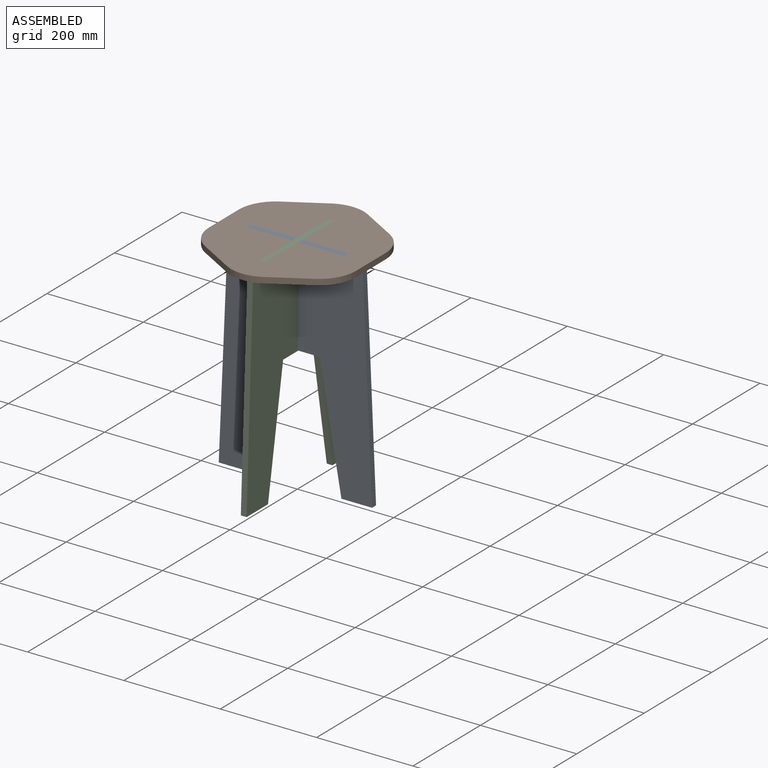
[diagram: assembled view]
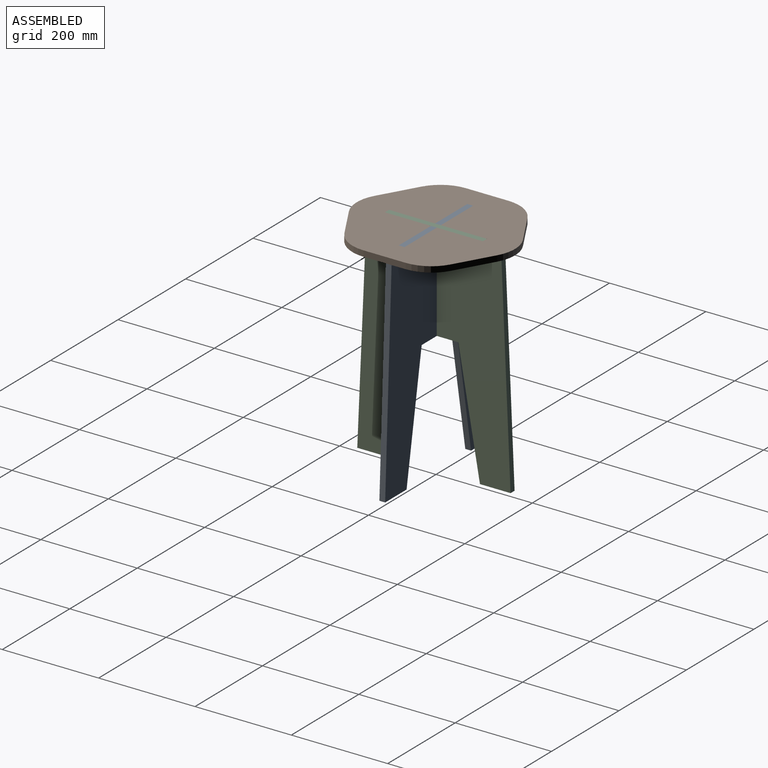
[diagram: assembled view, second angle]
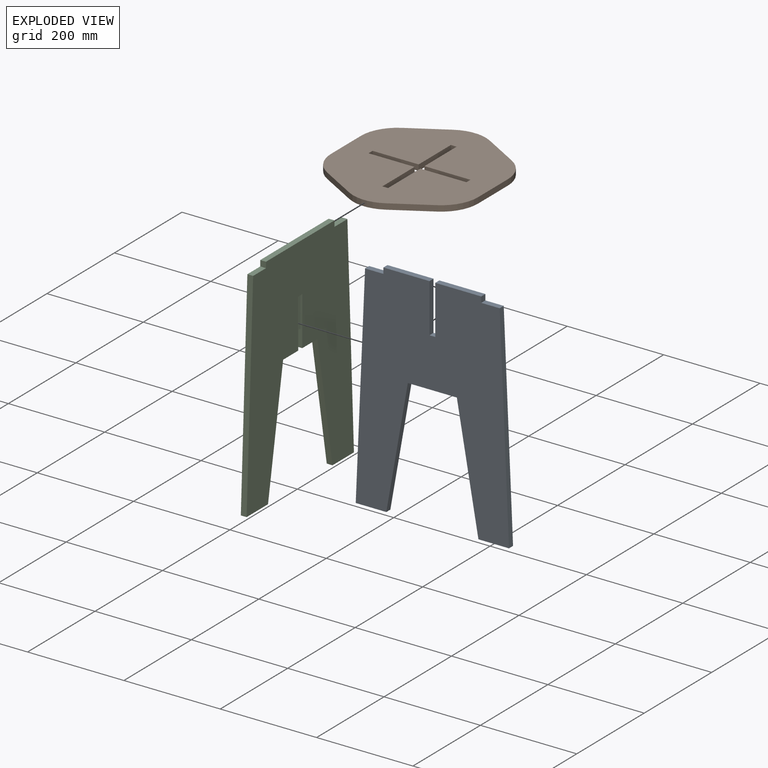
[diagram: exploded view]
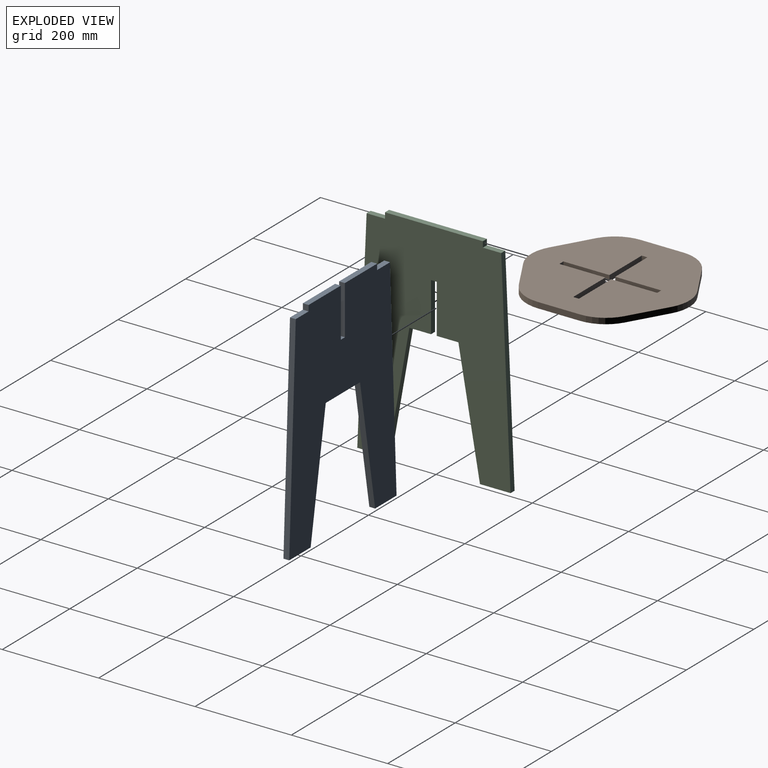
[diagram: exploded view, second angle]
ASSEMBLY  parts=3 mates=2
PART A: 18 faces, bbox 318.2x12x457.2 mm
  f0: plane 254x44.79mm, normal (-0.98,0,-0.17), area 3095mm2, adj f1,f15,f16,f17
  f1: plane 63.5x12mm, normal (0,0,-1), area 762mm2, adj f0,f2,f16,f17
  f2: plane 445.2x19.39mm, normal (1,0,0.04), area 5347.5mm2, adj f1,f3,f16,f17
  f3: plane 38.1x12mm, normal (0,0,1), area 457.2mm2, adj f2,f4,f16,f17
  f4: plane 12x12mm, normal (1,0,0), area 144mm2, adj f3,f5,f16,f17
  f5: plane 95.6x12mm, normal (0,0,1), area 1147.2mm2, adj f4,f6,f16,f17
  f6: plane 101.6x12mm, normal (-1,0,0), area 1219.2mm2, adj f5,f7,f16,f17
  f7: plane 12x12mm, normal (0,0,1), area 144mm2, adj f6,f8,f16,f17
  f8: plane 101.6x12mm, normal (1,0,0), area 1219.2mm2, adj f7,f9,f16,f17
  f9: plane 95.6x12mm, normal (0,0,1), area 1147.2mm2, adj f8,f10,f16,f17
  f10: plane 12x12mm, normal (-1,0,0), area 144mm2, adj f9,f11,f16,f17
  f11: plane 38.1x12mm, normal (0,0,1), area 457.2mm2, adj f10,f12,f16,f17
  f12: plane 445.2x19.39mm, normal (-1,0,0.04), area 5347.5mm2, adj f11,f13,f16,f17
  f13: plane 63.5x12mm, normal (0,0,-1), area 762mm2, adj f12,f14,f16,f17
  f14: plane 254x44.79mm, normal (0.98,0,-0.17), area 3095mm2, adj f13,f15,f16,f17
  f15: plane 101.6x12mm, normal (0,0,-1), area 1219.2mm2, adj f0,f14,f16,f17
  f16: plane 457.2x318.17mm, normal (0,-1,0), area 97056.9mm2, adj f0,f1,f2,f3,f4,f5,f6,f7
  f17: plane 457.2x318.17mm, normal (0,1,0), area 97056.9mm2, adj f0,f1,f2,f3,f4,f5,f6,f7
PART B: 26 faces, bbox 304.8x328.4x12 mm
  f0: plane 76.2x43.99mm, normal (0.5,-0.87,0), area 1055.9mm2, adj f1,f23,f24,f25
  f1: cylinder r=76.2mm len=65.99mm, axis (0,0,-1), area 957.6mm2, adj f0,f2,f24,f25
  f2: plane 87.99x12mm, normal (1,0,0), area 1055.9mm2, adj f1,f3,f24,f25
  f3: cylinder r=76.2mm len=65.99mm, axis (0,0,-1), area 957.6mm2, adj f2,f4,f24,f25
  f4: plane 76.2x43.99mm, normal (0.5,0.87,0), area 1055.9mm2, adj f3,f5,f24,f25
  f5: cylinder r=76.2mm len=76.2mm, axis (0,0,-1), area 957.6mm2, adj f4,f6,f24,f25
  f6: plane 76.2x43.99mm, normal (-0.5,0.87,0), area 1055.9mm2, adj f5,f7,f24,f25
  f7: cylinder r=76.2mm len=65.99mm, axis (0,0,-1), area 957.6mm2, adj f6,f8,f24,f25
  f8: plane 87.99x12mm, normal (-1,0,0), area 1055.9mm2, adj f7,f9,f24,f25
  f9: cylinder r=76.2mm len=65.99mm, axis (0,0,-1), area 957.6mm2, adj f8,f10,f24,f25
  f10: plane 76.2x43.99mm, normal (-0.5,-0.87,0), area 1055.9mm2, adj f9,f23,f24,f25
  f11: plane 95.6x12mm, normal (0,-1,0), area 1147.2mm2, adj f12,f22,f24,f25
  f12: plane 12x12mm, normal (-1,0,0), area 144mm2, adj f11,f13,f24,f25
  f13: plane 95.6x12mm, normal (0,1,0), area 1147.2mm2, adj f12,f14,f24,f25
  f14: plane 95.6x12mm, normal (-1,0,0), area 1147.2mm2, adj f13,f15,f24,f25
  f15: plane 12x12mm, normal (0,1,0), area 144mm2, adj f14,f16,f24,f25
  f16: plane 95.6x12mm, normal (1,0,0), area 1147.2mm2, adj f15,f17,f24,f25
  f17: plane 95.6x12mm, normal (0,1,0), area 1147.2mm2, adj f16,f18,f24,f25
  f18: plane 12x12mm, normal (1,0,0), area 144mm2, adj f17,f19,f24,f25
  f19: plane 95.6x12mm, normal (0,-1,0), area 1147.2mm2, adj f18,f20,f24,f25
  f20: plane 95.6x12mm, normal (1,0,0), area 1147.2mm2, adj f19,f21,f24,f25
  f21: plane 12x12mm, normal (0,-1,0), area 144mm2, adj f20,f22,f24,f25
  f22: plane 95.6x12mm, normal (-1,0,0), area 1147.2mm2, adj f11,f21,f24,f25
  f23: cylinder r=76.2mm len=76.2mm, axis (0,0,-1), area 957.6mm2, adj f0,f10,f24,f25
  f24: plane 328.38x304.8mm, normal (0,0,1), area 73851mm2, adj f0,f1,f2,f3,f4,f5,f6,f7
  f25: plane 328.38x304.8mm, normal (0,0,-1), area 73851mm2, adj f0,f1,f2,f3,f4,f5,f6,f7
PART C: 18 faces, bbox 318.2x12x457.2 mm
  f0: plane 254x44.79mm, normal (-0.98,0,-0.17), area 3095mm2, adj f1,f15,f16,f17
  f1: plane 63.5x12mm, normal (0,0,-1), area 762mm2, adj f0,f2,f16,f17
  f2: plane 445.2x19.39mm, normal (1,0,0.04), area 5347.5mm2, adj f1,f3,f16,f17
  f3: plane 38.1x12mm, normal (0,0,1), area 457.2mm2, adj f2,f4,f16,f17
  f4: plane 12x12mm, normal (1,0,0), area 144mm2, adj f3,f5,f16,f17
  f5: plane 203.2x12mm, normal (0,0,1), area 2438.4mm2, adj f4,f6,f16,f17
  f6: plane 12x12mm, normal (-1,0,0), area 144mm2, adj f5,f7,f16,f17
  f7: plane 38.1x12mm, normal (0,0,1), area 457.2mm2, adj f6,f8,f16,f17
  f8: plane 445.2x19.39mm, normal (-1,0,0.04), area 5347.5mm2, adj f7,f9,f16,f17
  f9: plane 63.5x12mm, normal (0,0,-1), area 762mm2, adj f8,f10,f16,f17
  f10: plane 254x44.79mm, normal (0.98,0,-0.17), area 3095mm2, adj f9,f11,f16,f17
  f11: plane 44.8x12mm, normal (0,0,-1), area 537.6mm2, adj f10,f12,f16,f17
  f12: plane 101.6x12mm, normal (1,0,0), area 1219.2mm2, adj f11,f13,f16,f17
  f13: plane 12x12mm, normal (0,0,-1), area 144mm2, adj f12,f14,f16,f17
  f14: plane 101.6x12mm, normal (-1,0,0), area 1219.2mm2, adj f13,f15,f16,f17
  f15: plane 44.8x12mm, normal (0,0,-1), area 537.6mm2, adj f0,f14,f16,f17
  f16: plane 457.2x318.17mm, normal (0,-1,0), area 97056.9mm2, adj f0,f1,f2,f3,f4,f5,f6,f7
  f17: plane 457.2x318.17mm, normal (0,1,0), area 97056.9mm2, adj f0,f1,f2,f3,f4,f5,f6,f7
PLACE A t=(0,6,-445.2)mm
PLACE B at identity fixed
PLACE C rot(axis=(0,0,1),90deg) t=(-6,0,-445.2)mm
MATE fastened A.f4 <-> B.f12  axis (1,0,0) through (101.6,0,6)mm
MATE fastened C.f4 <-> B.f21  axis (0,1,0) through (0,101.6,6)mm
